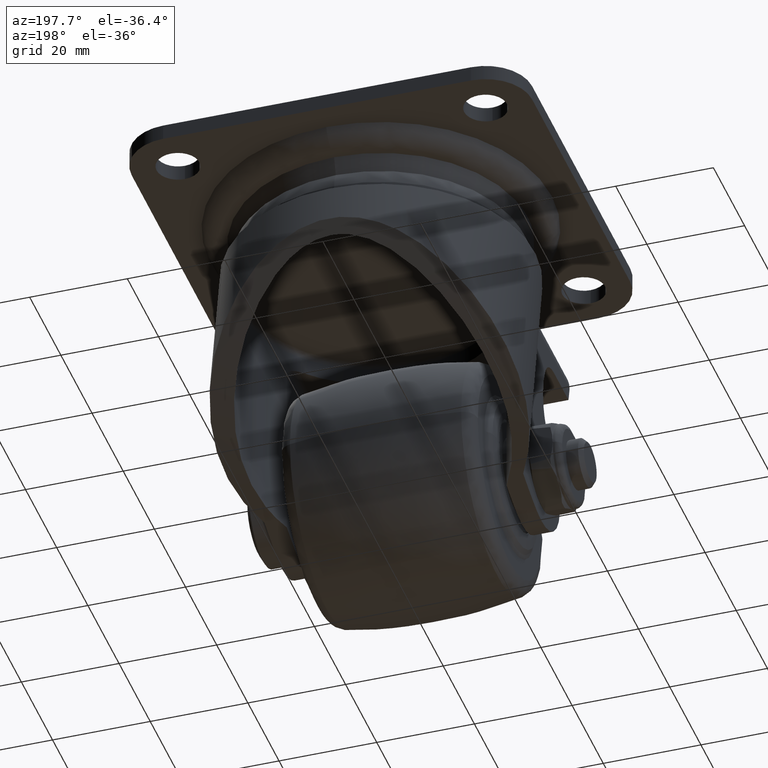
[diagram: clean part render]
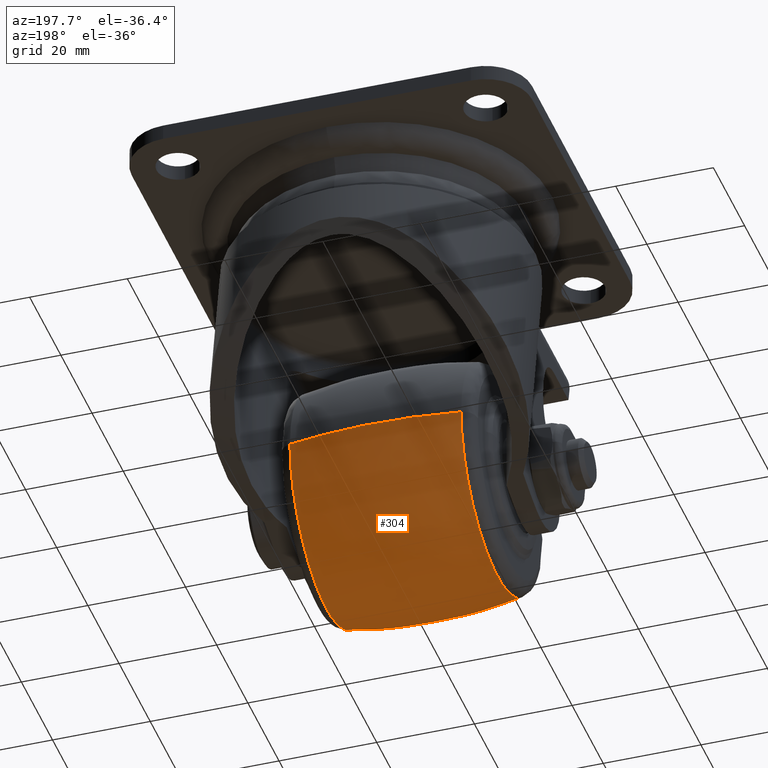
[diagram: same view with one face highlighted and labeled with its STEP entity id]
A machine part, auxiliary view. The second image highlights one B-rep face of the part: STEP entity #304.
In plain terms, the highlighted face is a freeform B-spline surface patch.
Its self-contained STEP definition (entity closure, byte-faithful):
#304=ADVANCED_FACE('',(#1911),#1910,.T.);
#1910=( BOUNDED_SURFACE() B_SPLINE_SURFACE( 2,2,((#3533,#3534,#3535,#3536,#3537),(#3538,#3539,#3540,#3541,#3542),(#3543,#3544,#3545,#3546,#3547)), .UNSPECIFIED.,.F.,.F.,.F.) B_SPLINE_SURFACE_WITH_KNOTS((3,3),(3,2,3),(-1.76167545760E-01,1.76167542388E-01),(3.14159265359E+00,4.71238898038E+00,6.28318530718E+00), .UNSPECIFIED. ) GEOMETRIC_REPRESENTATION_ITEM() RATIONAL_B_SPLINE_SURFACE(((1.00000000000E+00,7.07106781187E-01,1.00000000000E+00,7.07106781187E-01,1.00000000000E+00),(9.84522588857E-01,6.96162598812E-01,9.84522588857E-01,6.96162598812E-01,9.84522588857E-01),(1.00000000000E+00,7.07106781187E-01,1.00000000000E+00,7.07106781187E-01,1.00000000000E+00))) REPRESENTATION_ITEM('') SURFACE() );
#1911=FACE_OUTER_BOUND('',#3548,.T.);
#3533=CARTESIAN_POINT('',(-1.75257731959E+01,-2.87197852068E-15,-2.34522588562E+01));
#3534=CARTESIAN_POINT('',(-1.75257731959E+01,-2.34522588562E+01,-2.34522588562E+01));
#3535=CARTESIAN_POINT('',(-1.75257731959E+01,-2.34522588562E+01,2.87197852068E-15));
#3536=CARTESIAN_POINT('',(-1.75257731959E+01,-2.34522588562E+01,2.34522588562E+01));
#3537=CARTESIAN_POINT('',(-1.75257731959E+01,2.87197852068E-15,2.34522588562E+01));
#3538=CARTESIAN_POINT('',(-1.71237685365E-07,-3.25403290997E-15,-2.65720727303E+01));
#3539=CARTESIAN_POINT('',(-1.71237685365E-07,-2.65720727303E+01,-2.65720727303E+01));
#3540=CARTESIAN_POINT('',(-1.71237685365E-07,-2.65720727303E+01,3.25403290997E-15));
#3541=CARTESIAN_POINT('',(-1.71237685365E-07,-2.65720727303E+01,2.65720727303E+01));
#3542=CARTESIAN_POINT('',(-1.71237685365E-07,3.25403290997E-15,2.65720727303E+01));
#3543=CARTESIAN_POINT('',(1.75257728639E+01,-2.87197852791E-15,-2.34522589153E+01));
#3544=CARTESIAN_POINT('',(1.75257728639E+01,-2.34522589153E+01,-2.34522589153E+01));
#3545=CARTESIAN_POINT('',(1.75257728639E+01,-2.34522589153E+01,2.87197852791E-15));
#3546=CARTESIAN_POINT('',(1.75257728639E+01,-2.34522589153E+01,2.34522589153E+01));
#3547=CARTESIAN_POINT('',(1.75257728639E+01,2.87197852791E-15,2.34522589153E+01));
#3548=EDGE_LOOP('',(#4625,#4626,#4627,#4628));
#4625=ORIENTED_EDGE('',*,*,#5097,.F.);
#4626=ORIENTED_EDGE('',*,*,#5101,.F.);
#4627=ORIENTED_EDGE('',*,*,#5103,.T.);
#4628=ORIENTED_EDGE('',*,*,#5102,.T.);
#5097=EDGE_CURVE('',#7608,#7615,#7616,.T.);
#5101=EDGE_CURVE('',#7635,#7608,#7642,.T.);
#5102=EDGE_CURVE('',#7634,#7615,#7648,.T.);
#5103=EDGE_CURVE('',#7635,#7634,#7654,.T.);
#7608=VERTEX_POINT('',#9747);
#7615=VERTEX_POINT('',#9751);
#7616=CIRCLE('',#9755,2.34522589153E+01);
#7634=VERTEX_POINT('',#9765);
#7635=VERTEX_POINT('',#9766);
#7642=(BOUNDED_CURVE() B_SPLINE_CURVE(2,(#9771,#9772,#9773),.UNSPECIFIED.,.F.,.F.) B_SPLINE_CURVE_WITH_KNOTS((3,3),(-1.76167545760E-01,1.76167542388E-01),.UNSPECIFIED.) CURVE() GEOMETRIC_REPRESENTATION_ITEM() RATIONAL_B_SPLINE_CURVE((1.00000000000E+00,9.84522588857E-01,1.00000000000E+00)) REPRESENTATION_ITEM('') );
#7648=(BOUNDED_CURVE() B_SPLINE_CURVE(2,(#9774,#9775,#9776),.UNSPECIFIED.,.F.,.F.) B_SPLINE_CURVE_WITH_KNOTS((3,3),(-1.76167545760E-01,1.76167542388E-01),.UNSPECIFIED.) CURVE() GEOMETRIC_REPRESENTATION_ITEM() RATIONAL_B_SPLINE_CURVE((1.00000000000E+00,9.84522588857E-01,1.00000000000E+00)) REPRESENTATION_ITEM('') );
#7654=CIRCLE('',#9780,2.34522588562E+01);
#9747=CARTESIAN_POINT('',(1.75257728639E+01,-1.18423789293E-15,2.34522589153E+01));
#9751=CARTESIAN_POINT('',(1.75257728639E+01,0.00000000000E+00,-2.34522589153E+01));
#9752=CARTESIAN_POINT('',(1.75257728639E+01,0.00000000000E+00,0.00000000000E+00));
#9753=DIRECTION('',(1.00000000000E+00,0.00000000000E+00,0.00000000000E+00));
#9754=DIRECTION('',(0.00000000000E+00,-1.22460635382E-16,-1.00000000000E+00));
#9755=AXIS2_PLACEMENT_3D('',#9752,#9753,#9754);
#9765=CARTESIAN_POINT('',(-1.75257731959E+01,0.00000000000E+00,-2.34522588562E+01));
#9766=CARTESIAN_POINT('',(-1.75257731959E+01,-1.18423789293E-15,2.34522588562E+01));
#9771=CARTESIAN_POINT('',(-1.75257731959E+01,2.87197852068E-15,2.34522588562E+01));
#9772=CARTESIAN_POINT('',(-1.71237685365E-07,3.25403290997E-15,2.65720727303E+01));
#9773=CARTESIAN_POINT('',(1.75257728639E+01,2.87197852791E-15,2.34522589153E+01));
#9774=CARTESIAN_POINT('',(-1.75257731959E+01,-2.87197852068E-15,-2.34522588562E+01));
#9775=CARTESIAN_POINT('',(-1.71237685365E-07,-3.25403290997E-15,-2.65720727303E+01));
#9776=CARTESIAN_POINT('',(1.75257728639E+01,-2.87197852791E-15,-2.34522589153E+01));
#9777=CARTESIAN_POINT('',(-1.75257731959E+01,0.00000000000E+00,0.00000000000E+00));
#9778=DIRECTION('',(1.00000000000E+00,0.00000000000E+00,0.00000000000E+00));
#9779=DIRECTION('',(0.00000000000E+00,-1.22460635382E-16,-1.00000000000E+00));
#9780=AXIS2_PLACEMENT_3D('',#9777,#9778,#9779);